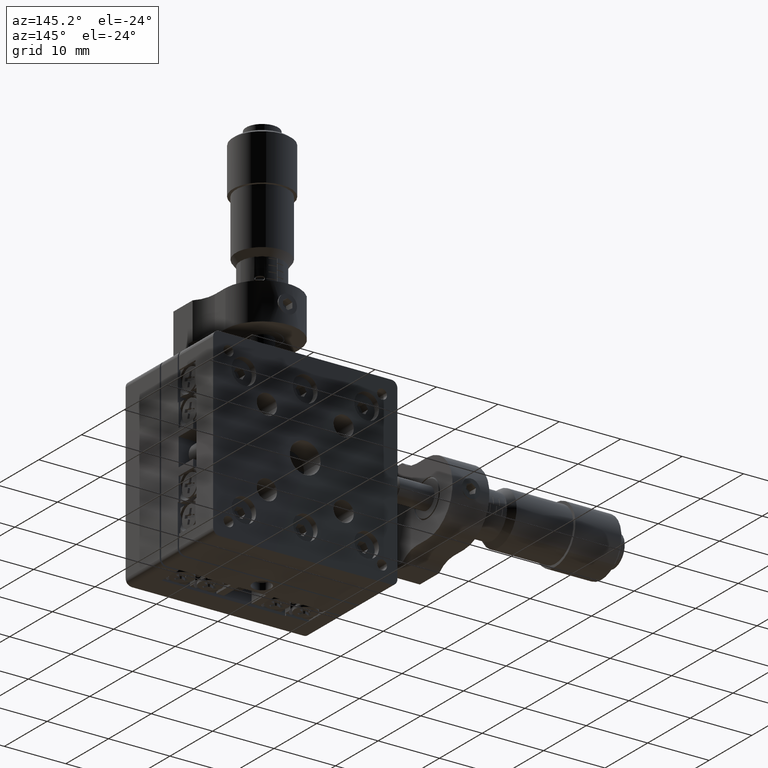
[diagram: clean part render]
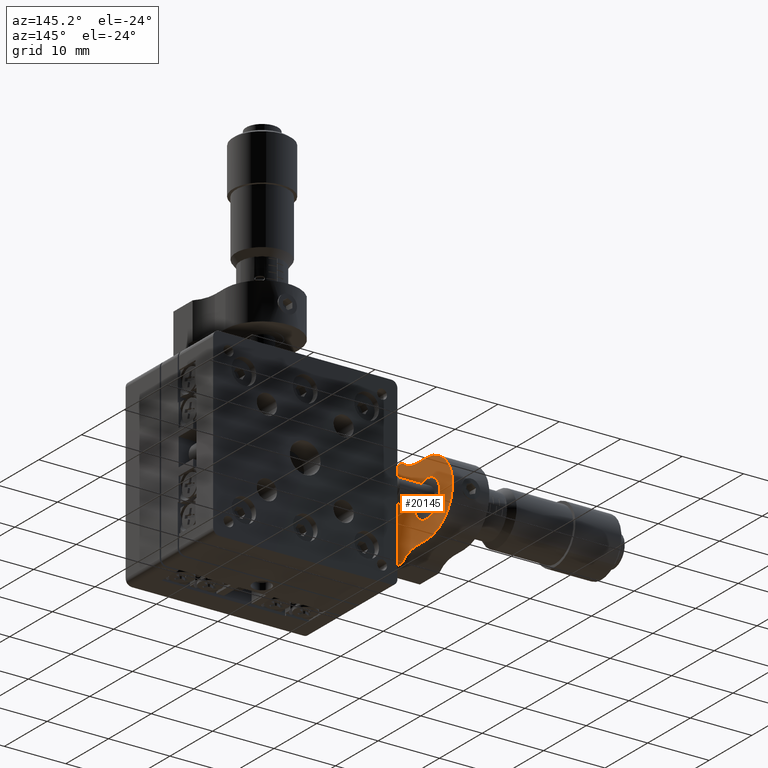
[diagram: same view with one face highlighted and labeled with its STEP entity id]
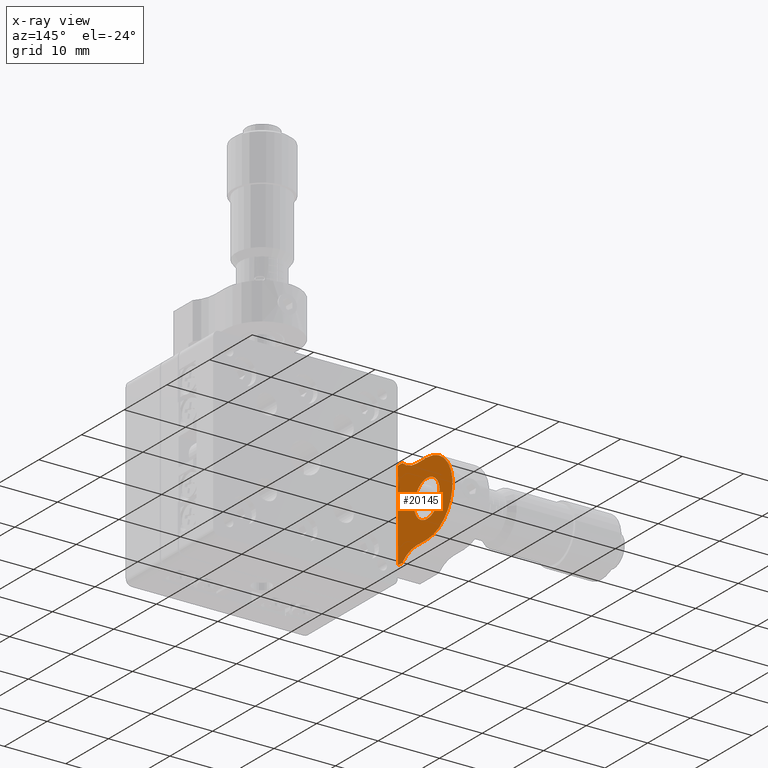
[diagram: x-ray of the same camera — body ghosted, the highlighted face saturated]
A machine part, auxiliary view. The second image highlights one B-rep face of the part: STEP entity #20145.
The next image is the same camera in x-ray: the body ghosted, the highlighted face saturated — about 1% of this face is hidden behind the body in this view.
In plain terms, the highlighted planar face has unit normal (-1, 0, -0).
Its self-contained STEP definition (entity closure, byte-faithful):
#344 = EDGE_CURVE ( 'NONE', #23966, #2379, #30447, .T. ) ;
#1178 = DIRECTION ( 'NONE',  ( 0.0000000000000000000, 1.000000000000000000, -2.775557561562891000E-015 ) ) ;
#2379 = VERTEX_POINT ( 'NONE', #8779 ) ;
#3572 = CARTESIAN_POINT ( 'NONE',  ( -21.00000000000000400, 25.99999999999997900, 7.299999999999940300 ) ) ;
#4457 = ORIENTED_EDGE ( 'NONE', *, *, #12144, .T. ) ;
#4935 = VECTOR ( 'NONE', #46423, 1000.000000000000000 ) ;
#5410 = LINE ( 'NONE', #8799, #51531 ) ;
#7006 = CARTESIAN_POINT ( 'NONE',  ( -21.00000000000000400, 16.36303434416010900, -11.00000000000001800 ) ) ;
#7231 = AXIS2_PLACEMENT_3D ( 'NONE', #14021, #31137, #22769 ) ;
#8583 = CARTESIAN_POINT ( 'NONE',  ( -21.00000000000000400, 13.00000000000003600, -7.300000000000013100 ) ) ;
#8718 = CARTESIAN_POINT ( 'NONE',  ( -21.00000000000000400, 18.80000000000000100, 2.999999999999968900 ) ) ;
#8779 = CARTESIAN_POINT ( 'NONE',  ( -21.00000000000000400, 12.99999999999998000, 7.299999999999991800 ) ) ;
#8799 = CARTESIAN_POINT ( 'NONE',  ( -21.00000000000000400, 18.80000000000001100, 5.999999999999968000 ) ) ;
#9178 = CARTESIAN_POINT ( 'NONE',  ( -21.00000000000000400, 18.80000000000001100, -3.194130505995524600E-014 ) ) ;
#9195 = AXIS2_PLACEMENT_3D ( 'NONE', #7006, #39463, #37355 ) ;
#9433 = DIRECTION ( 'NONE',  ( -1.000000000000000000, 1.377866075204438800E-016, -1.640980433381785700E-016 ) ) ;
#9626 = CARTESIAN_POINT ( 'NONE',  ( -21.00000000000000400, 16.36303434416001000, 10.99999999999998400 ) ) ;
#9935 = CARTESIAN_POINT ( 'NONE',  ( -21.00000000000000400, 18.80000000000001100, -6.000000000000032000 ) ) ;
#10196 = VERTEX_POINT ( 'NONE', #14344 ) ;
#10290 = AXIS2_PLACEMENT_3D ( 'NONE', #9178, #18654, #31404 ) ;
#10959 = EDGE_CURVE ( 'NONE', #25032, #29157, #50164, .T. ) ;
#11841 = AXIS2_PLACEMENT_3D ( 'NONE', #9626, #31295, #1178 ) ;
#12144 = EDGE_CURVE ( 'NONE', #45471, #14359, #20888, .T. ) ;
#14021 = CARTESIAN_POINT ( 'NONE',  ( -21.00000000000000400, 25.99999999999997900, 7.299999999999940300 ) ) ;
#14205 = CIRCLE ( 'NONE', #9195, 5.000000000000000900 ) ;
#14344 = CARTESIAN_POINT ( 'NONE',  ( -21.00000000000000400, 16.36303434416005900, -6.000000000000025800 ) ) ;
#14359 = VERTEX_POINT ( 'NONE', #8718 ) ;
#14615 = EDGE_CURVE ( 'NONE', #23966, #25032, #38213, .T. ) ;
#14735 = FACE_OUTER_BOUND ( 'NONE', #20307, .T. ) ;
#17430 = DIRECTION ( 'NONE',  ( 1.377866075204437100E-016, 1.000000000000000000, -3.677613769070831800E-015 ) ) ;
#18654 = DIRECTION ( 'NONE',  ( -1.000000000000000000, 1.377866075204438800E-016, -1.640980433381785700E-016 ) ) ;
#18955 = VERTEX_POINT ( 'NONE', #24216 ) ;
#19014 = VERTEX_POINT ( 'NONE', #55660 ) ;
#20145 = ADVANCED_FACE ( 'NONE', ( #23557, #14735 ), #40047, .F. ) ;
#20307 = EDGE_LOOP ( 'NONE', ( #42747, #23495, #45991, #50197, #24079, #33688, #20555, #51746 ) ) ;
#20555 = ORIENTED_EDGE ( 'NONE', *, *, #25525, .F. ) ;
#20888 = CIRCLE ( 'NONE', #55577, 2.999999999999999100 ) ;
#22739 = CARTESIAN_POINT ( 'NONE',  ( -21.00000000000000400, 12.00000000000003200, -7.300000000000009600 ) ) ;
#22742 = DIRECTION ( 'NONE',  ( 0.0000000000000000000, 1.000000000000000000, -3.677613769070833400E-015 ) ) ;
#22769 = DIRECTION ( 'NONE',  ( 1.377866075204437100E-016, 1.000000000000000000, -3.677613769070831800E-015 ) ) ;
#23495 = ORIENTED_EDGE ( 'NONE', *, *, #14615, .T. ) ;
#23557 = FACE_BOUND ( 'NONE', #24510, .T. ) ;
#23966 = VERTEX_POINT ( 'NONE', #48150 ) ;
#24079 = ORIENTED_EDGE ( 'NONE', *, *, #27536, .F. ) ;
#24216 = CARTESIAN_POINT ( 'NONE',  ( -21.00000000000000400, 16.36303434416005900, 5.999999999999975100 ) ) ;
#24288 = ORIENTED_EDGE ( 'NONE', *, *, #47003, .T. ) ;
#24510 = EDGE_LOOP ( 'NONE', ( #4457, #24288 ) ) ;
#24534 = DIRECTION ( 'NONE',  ( -1.000000000000000000, 1.377866075204438800E-016, -1.640980433381785700E-016 ) ) ;
#25032 = VERTEX_POINT ( 'NONE', #22739 ) ;
#25273 = VERTEX_POINT ( 'NONE', #37347 ) ;
#25525 = EDGE_CURVE ( 'NONE', #18955, #25273, #5410, .T. ) ;
#26268 = DIRECTION ( 'NONE',  ( 1.377866075204437800E-016, 1.000000000000000000, -4.033532505926993000E-015 ) ) ;
#27536 = EDGE_CURVE ( 'NONE', #19014, #10196, #42233, .T. ) ;
#28383 = CIRCLE ( 'NONE', #29226, 2.999999999999999100 ) ;
#28474 = CIRCLE ( 'NONE', #10290, 5.999999999999998200 ) ;
#29157 = VERTEX_POINT ( 'NONE', #8583 ) ;
#29226 = AXIS2_PLACEMENT_3D ( 'NONE', #50704, #24534, #38062 ) ;
#30164 = CARTESIAN_POINT ( 'NONE',  ( -21.00000000000000000, 26.00000000000003200, -7.300000000000066400 ) ) ;
#30447 = LINE ( 'NONE', #3572, #35220 ) ;
#31137 = DIRECTION ( 'NONE',  ( -1.000000000000000000, 1.377866075204431200E-016, -1.640980433381785700E-016 ) ) ;
#31295 = DIRECTION ( 'NONE',  ( 1.000000000000000000, -1.377866075204438800E-016, 1.640980433381785700E-016 ) ) ;
#31404 = DIRECTION ( 'NONE',  ( 0.0000000000000000000, 1.000000000000000000, -3.677613769070832600E-015 ) ) ;
#31932 = VECTOR ( 'NONE', #17430, 1000.000000000000000 ) ;
#32791 = CIRCLE ( 'NONE', #11841, 5.000000000000000900 ) ;
#33688 = ORIENTED_EDGE ( 'NONE', *, *, #36620, .F. ) ;
#33935 = DIRECTION ( 'NONE',  ( 1.377866075204437100E-016, 1.000000000000000000, -3.677613769070831800E-015 ) ) ;
#35220 = VECTOR ( 'NONE', #33935, 1000.000000000000000 ) ;
#35509 = VECTOR ( 'NONE', #44638, 1000.000000000000000 ) ;
#36620 = EDGE_CURVE ( 'NONE', #25273, #19014, #28474, .T. ) ;
#36700 = EDGE_CURVE ( 'NONE', #10196, #29157, #14205, .T. ) ;
#37347 = CARTESIAN_POINT ( 'NONE',  ( -21.00000000000000400, 18.80000000000001100, 5.999999999999968000 ) ) ;
#37355 = DIRECTION ( 'NONE',  ( 0.0000000000000000000, 1.000000000000000000, -4.510281037539697700E-015 ) ) ;
#38062 = DIRECTION ( 'NONE',  ( 0.0000000000000000000, 1.000000000000000000, -3.677613769070833400E-015 ) ) ;
#38213 = LINE ( 'NONE', #46246, #4935 ) ;
#39463 = DIRECTION ( 'NONE',  ( 1.000000000000000000, -1.377866075204438800E-016, 1.640980433381785700E-016 ) ) ;
#40047 = PLANE ( 'NONE',  #7231 ) ;
#42233 = LINE ( 'NONE', #9935, #35509 ) ;
#42747 = ORIENTED_EDGE ( 'NONE', *, *, #344, .F. ) ;
#44638 = DIRECTION ( 'NONE',  ( -1.377866075204437100E-016, -1.000000000000000000, 3.321695032214669800E-015 ) ) ;
#45471 = VERTEX_POINT ( 'NONE', #54845 ) ;
#45991 = ORIENTED_EDGE ( 'NONE', *, *, #10959, .T. ) ;
#46246 = CARTESIAN_POINT ( 'NONE',  ( -21.00000000000000400, 11.99999999999997900, 7.299999999999997200 ) ) ;
#46423 = DIRECTION ( 'NONE',  ( 1.640980433381779500E-016, 3.816391647148975600E-015, -1.000000000000000000 ) ) ;
#47003 = EDGE_CURVE ( 'NONE', #14359, #45471, #28383, .T. ) ;
#47952 = EDGE_CURVE ( 'NONE', #2379, #18955, #32791, .T. ) ;
#48150 = CARTESIAN_POINT ( 'NONE',  ( -21.00000000000000400, 11.99999999999997900, 7.299999999999997200 ) ) ;
#48901 = CARTESIAN_POINT ( 'NONE',  ( -21.00000000000000400, 18.80000000000001100, -3.194130505995524600E-014 ) ) ;
#50164 = LINE ( 'NONE', #30164, #31932 ) ;
#50197 = ORIENTED_EDGE ( 'NONE', *, *, #36700, .F. ) ;
#50704 = CARTESIAN_POINT ( 'NONE',  ( -21.00000000000000400, 18.80000000000001100, -3.194130505995524600E-014 ) ) ;
#51531 = VECTOR ( 'NONE', #26268, 1000.000000000000000 ) ;
#51746 = ORIENTED_EDGE ( 'NONE', *, *, #47952, .F. ) ;
#54845 = CARTESIAN_POINT ( 'NONE',  ( -21.00000000000000400, 18.80000000000002200, -3.000000000000032400 ) ) ;
#55577 = AXIS2_PLACEMENT_3D ( 'NONE', #48901, #9433, #22742 ) ;
#55660 = CARTESIAN_POINT ( 'NONE',  ( -21.00000000000000400, 18.80000000000001100, -6.000000000000032000 ) ) ;